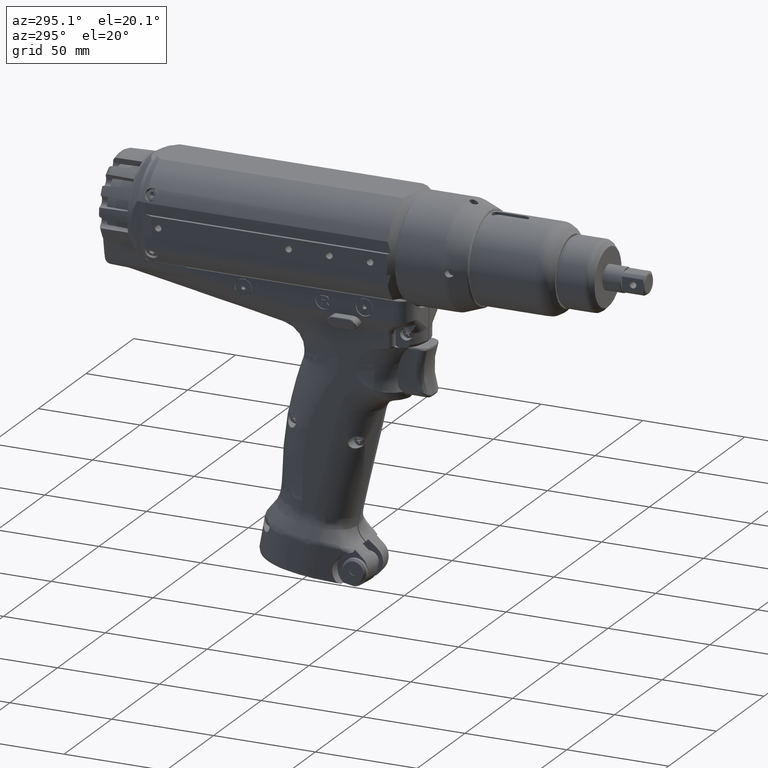
[diagram: clean part render]
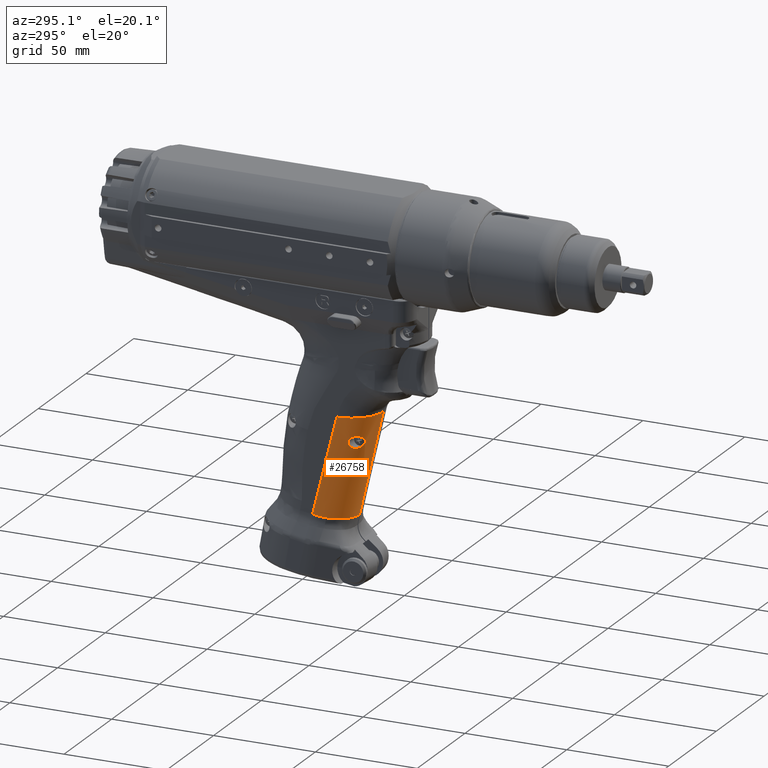
[diagram: same view with one face highlighted and labeled with its STEP entity id]
A machine part, auxiliary view. The second image highlights one B-rep face of the part: STEP entity #26758.
In plain terms, the highlighted face is a freeform B-spline surface patch.
Its self-contained STEP definition (entity closure, byte-faithful):
#284=FACE_BOUND('',#4470,.T.);
#2336=B_SPLINE_SURFACE_WITH_KNOTS('',3,3,((#58247,#58248,#58249,#58250,
#58251,#58252,#58253,#58254,#58255,#58256),(#58257,#58258,#58259,#58260,
#58261,#58262,#58263,#58264,#58265,#58266),(#58267,#58268,#58269,#58270,
#58271,#58272,#58273,#58274,#58275,#58276),(#58277,#58278,#58279,#58280,
#58281,#58282,#58283,#58284,#58285,#58286)),.UNSPECIFIED.,.F.,.F.,.F.,(4,
4),(4,1,1,1,1,1,1,4),(6.18932721387536,59.3048513845876),(0.,1.,2.,3.,4.,
5.,6.,6.98580711153998),.UNSPECIFIED.);
#2967=FACE_OUTER_BOUND('',#4469,.T.);
#4469=EDGE_LOOP('',(#19173,#19174,#19175,#19176,#19177));
#4470=EDGE_LOOP('',(#19178,#19179));
#5748=B_SPLINE_CURVE_WITH_KNOTS('',3,(#36787,#36788,#36789,#36790,#36791,
#36792,#36793,#36794,#36795,#36796,#36797,#36798,#36799,#36800,#36801,#36802,
#36803,#36804,#36805,#36806,#36807,#36808,#36809,#36810),.UNSPECIFIED.,
 .F.,.F.,(4,2,2,2,2,2,2,2,2,2,2,4),(1.00000004799961E-6,0.0399279498760376,
0.0798051705451103,0.130848526468876,0.198391212339318,0.315031575866223,
0.447056956273932,0.594813503529331,0.79240549529102,1.01294523933668,1.10984453991152,
1.17048799241797),.UNSPECIFIED.);
#5749=B_SPLINE_CURVE_WITH_KNOTS('',3,(#36813,#36814,#36815,#36816,#36817,
#36818,#36819,#36820,#36821,#36822,#36823,#36824,#36825,#36826,#36827,#36828,
#36829,#36830,#36831,#36832,#36833,#36834,#36835,#36836,#36837,#36838),
 .UNSPECIFIED.,.F.,.F.,(4,2,2,2,2,2,2,2,2,2,2,2,4),(1.0000001424218E-6,
0.035569275896258,0.0666455414046464,0.0955975118845171,0.134365885471637,
0.219622576986934,0.358342754203462,0.454641267355264,0.640740076406032,
0.764676928355262,0.869451308148143,0.951087910112421,1.00885718042926),
 .UNSPECIFIED.);
#6212=B_SPLINE_CURVE_WITH_KNOTS('',3,(#56357,#56358,#56359,#56360,#56361,
#56362,#56363,#56364,#56365,#56366,#56367,#56368,#56369,#56370,#56371,#56372,
#56373,#56374,#56375,#56376,#56377,#56378,#56379,#56380,#56381,#56382,#56383,
#56384),.UNSPECIFIED.,.F.,.F.,(4,3,3,3,3,3,3,3,3,4),(-6.48301901123684,
-5.58123336484104,-4.87644620304718,-3.99825809103723,-3.26299748077006,
-2.99430752214181,-2.13534146509987,-1.27134990228041,-0.404758120987186,
-4.51967170065159E-10),.UNSPECIFIED.);
#6252=B_SPLINE_CURVE_WITH_KNOTS('',3,(#58288,#58289,#58290,#58291,#58292,
#58293,#58294,#58295,#58296,#58297,#58298,#58299,#58300,#58301,#58302,#58303,
#58304,#58305,#58306,#58307,#58308,#58309,#58310,#58311,#58312,#58313,#58314,
#58315),.UNSPECIFIED.,.F.,.F.,(4,3,3,3,3,3,3,3,3,4),(0.,3.03318487153724,
6.06636974307834,9.09955461461943,12.1327394861605,15.1659243577017,18.1991092292427,
19.7157016650132,21.2322941007838,23.9684616308028),.UNSPECIFIED.);
#6253=B_SPLINE_CURVE_WITH_KNOTS('',3,(#58317,#58318,#58319,#58320,#58321,
#58322,#58323,#58324,#58325,#58326,#58327,#58328,#58329,#58330,#58331,#58332,
#58333,#58334,#58335,#58336,#58337,#58338,#58339,#58340,#58341,#58342,#58343,
#58344,#58345,#58346,#58347,#58348,#58349,#58350,#58351,#58352,#58353,#58354,
#58355,#58356,#58357,#58358,#58359,#58360,#58361,#58362,#58363,#58364,#58365,
#58366,#58367,#58368,#58369,#58370,#58371,#58372,#58373,#58374),
 .UNSPECIFIED.,.F.,.F.,(4,3,3,3,3,3,3,3,3,3,3,3,3,3,3,3,3,3,3,4),(0.310536268353028,
1.38071660850015,2.42671165334602,3.72830088089683,4.85342330669205,6.06677913336506,
7.28013496003807,7.444861780905,8.99504409606299,9.7068466133841,11.1601161307959,
12.1335582667301,13.3469140934031,14.4078794233717,14.5602699200761,14.885257713518,
16.0792595320456,16.9869815734222,18.6053668646146,19.4136932267682),
 .UNSPECIFIED.);
#6254=B_SPLINE_CURVE_WITH_KNOTS('',3,(#58375,#58376,#58377,#58378,#58379,
#58380,#58381),.UNSPECIFIED.,.F.,.F.,(4,3,4),(-51.8323816279364,-8.30137088875114,
-0.015886336177479),.UNSPECIFIED.);
#7363=LINE('',#54623,#8916);
#8916=VECTOR('',#31836,10.);
#10017=VERTEX_POINT('',#36785);
#10018=VERTEX_POINT('',#36786);
#10861=VERTEX_POINT('',#54605);
#10862=VERTEX_POINT('',#54622);
#10994=VERTEX_POINT('',#56356);
#11039=VERTEX_POINT('',#58287);
#11040=VERTEX_POINT('',#58316);
#12630=EDGE_CURVE('',#10017,#10018,#5748,.T.);
#12633=EDGE_CURVE('',#10018,#10017,#5749,.T.);
#13853=EDGE_CURVE('',#10862,#10861,#7363,.T.);
#14028=EDGE_CURVE('',#10861,#10994,#6212,.T.);
#14107=EDGE_CURVE('',#10862,#11039,#6252,.T.);
#14108=EDGE_CURVE('',#11040,#10994,#6253,.T.);
#14109=EDGE_CURVE('',#11039,#11040,#6254,.T.);
#19173=ORIENTED_EDGE('',*,*,#14107,.F.);
#19174=ORIENTED_EDGE('',*,*,#13853,.T.);
#19175=ORIENTED_EDGE('',*,*,#14028,.T.);
#19176=ORIENTED_EDGE('',*,*,#14108,.F.);
#19177=ORIENTED_EDGE('',*,*,#14109,.F.);
#19178=ORIENTED_EDGE('',*,*,#12630,.T.);
#19179=ORIENTED_EDGE('',*,*,#12633,.T.);
#26758=ADVANCED_FACE('',(#2967,#284),#2336,.T.);
#31836=DIRECTION('',(-0.0105560679108805,0.238202072095039,-0.97115824780511));
#36785=CARTESIAN_POINT('',(-13.7149488905319,121.236096107619,-92.8080134733453));
#36786=CARTESIAN_POINT('',(-8.11928175796273,115.23609610762,-92.808013510919));
#36787=CARTESIAN_POINT('Ctrl Pts',(-13.7149488905348,121.23609610762,-92.8080134733457));
#36788=CARTESIAN_POINT('Ctrl Pts',(-13.7303484846312,121.23609610762,-92.6758173220096));
#36789=CARTESIAN_POINT('Ctrl Pts',(-13.7410168009004,121.22735490325,-92.5433488724138));
#36790=CARTESIAN_POINT('Ctrl Pts',(-13.752893597484,121.192237126642,-92.2799388535383));
#36791=CARTESIAN_POINT('Ctrl Pts',(-13.7540895795908,121.165952611107,-92.1495333491206));
#36792=CARTESIAN_POINT('Ctrl Pts',(-13.7460482663151,121.086508218777,-91.8571834851486));
#36793=CARTESIAN_POINT('Ctrl Pts',(-13.7338304543853,121.028139727693,-91.6975862814125));
#36794=CARTESIAN_POINT('Ctrl Pts',(-13.6876761893043,120.862767318435,-91.3415213282004));
#36795=CARTESIAN_POINT('Ctrl Pts',(-13.6482766619949,120.747089860536,-91.1518428767951));
#36796=CARTESIAN_POINT('Ctrl Pts',(-13.5056872432468,120.382734054409,-90.678444331958));
#36797=CARTESIAN_POINT('Ctrl Pts',(-13.3793797062975,120.10475457531,-90.4342783070648));
#36798=CARTESIAN_POINT('Ctrl Pts',(-13.0386234738941,119.457882261959,-90.0386607603775));
#36799=CARTESIAN_POINT('Ctrl Pts',(-12.8201043989713,119.092844081317,-89.9096863350362));
#36800=CARTESIAN_POINT('Ctrl Pts',(-12.2927111841346,118.326846459901,-89.7814647588892));
#36801=CARTESIAN_POINT('Ctrl Pts',(-11.981012492416,117.934278397285,-89.8002583252074));
#36802=CARTESIAN_POINT('Ctrl Pts',(-11.2073479538923,117.088497796319,-89.992122340382));
#36803=CARTESIAN_POINT('Ctrl Pts',(-10.7267435973319,116.656199435615,-90.215738808811));
#36804=CARTESIAN_POINT('Ctrl Pts',(-9.72047229838446,115.904705477581,-90.8500414974354));
#36805=CARTESIAN_POINT('Ctrl Pts',(-9.21422559197368,115.617830120473,-91.2681693145991));
#36806=CARTESIAN_POINT('Ctrl Pts',(-8.64506858879084,115.367386923819,-91.9056715101126));
#36807=CARTESIAN_POINT('Ctrl Pts',(-8.47888927010482,115.306574435243,-92.1206214031535));
#36808=CARTESIAN_POINT('Ctrl Pts',(-8.25469353282348,115.248771192539,-92.4961203286857));
#36809=CARTESIAN_POINT('Ctrl Pts',(-8.17840295862716,115.236096105627,-92.6488512910006));
#36810=CARTESIAN_POINT('Ctrl Pts',(-8.11928175796273,115.23609610762,-92.8080135109189));
#36813=CARTESIAN_POINT('Ctrl Pts',(-8.11928175796271,115.23609610762,-92.808013510919));
#36814=CARTESIAN_POINT('Ctrl Pts',(-8.07799803229494,115.236096109012,-92.9191548502344));
#36815=CARTESIAN_POINT('Ctrl Pts',(-8.04530422763644,115.242266748326,-93.0328692241218));
#36816=CARTESIAN_POINT('Ctrl Pts',(-8.0041377223712,115.267052324079,-93.2497613460381));
#36817=CARTESIAN_POINT('Ctrl Pts',(-7.99340267191995,115.283830688683,-93.3510208271908));
#36818=CARTESIAN_POINT('Ctrl Pts',(-7.99022889551102,115.326790841027,-93.546426904475));
#36819=CARTESIAN_POINT('Ctrl Pts',(-7.99661459683518,115.351909249477,-93.6390276553563));
#36820=CARTESIAN_POINT('Ctrl Pts',(-8.02931271410454,115.420545812113,-93.8515778133415));
#36821=CARTESIAN_POINT('Ctrl Pts',(-8.06127615892652,115.466634670073,-93.9677387196367));
#36822=CARTESIAN_POINT('Ctrl Pts',(-8.19777649715029,115.631863189238,-94.321264864511));
#36823=CARTESIAN_POINT('Ctrl Pts',(-8.34182664302372,115.770764687692,-94.533317506437));
#36824=CARTESIAN_POINT('Ctrl Pts',(-8.76843782077947,116.160463311334,-95.0071315054416));
#36825=CARTESIAN_POINT('Ctrl Pts',(-9.11669662551029,116.458895946667,-95.255955598459));
#36826=CARTESIAN_POINT('Ctrl Pts',(-9.76611673821292,117.036628617064,-95.570978942033));
#36827=CARTESIAN_POINT('Ctrl Pts',(-10.0417211083542,117.287374507143,-95.6663319801986));
#36828=CARTESIAN_POINT('Ctrl Pts',(-10.8405376371259,118.042684172567,-95.8451552900382));
#36829=CARTESIAN_POINT('Ctrl Pts',(-11.3717920673839,118.584263814852,-95.839029495119));
#36830=CARTESIAN_POINT('Ctrl Pts',(-12.1697936378831,119.468661602121,-95.5679972259104));
#36831=CARTESIAN_POINT('Ctrl Pts',(-12.4667509271316,119.81812549594,-95.3897666023795));
#36832=CARTESIAN_POINT('Ctrl Pts',(-12.949833065991,120.404035141857,-94.9104635164193));
#36833=CARTESIAN_POINT('Ctrl Pts',(-13.1423116497635,120.644673220338,-94.6361392804798));
#36834=CARTESIAN_POINT('Ctrl Pts',(-13.4229855088343,120.981484322016,-94.0529365155557));
#36835=CARTESIAN_POINT('Ctrl Pts',(-13.5223171144872,121.094448011332,-93.7703511925302));
#36836=CARTESIAN_POINT('Ctrl Pts',(-13.6493858629238,121.210951309054,-93.2534837951397));
#36837=CARTESIAN_POINT('Ctrl Pts',(-13.6888320606588,121.23609610762,-93.0322105770559));
#36838=CARTESIAN_POINT('Ctrl Pts',(-13.7149488905348,121.23609610762,-92.8080134733457));
#54605=CARTESIAN_POINT('',(-15.9825582871797,137.56783920862,-128.395362420582));
#54622=CARTESIAN_POINT('',(-15.4639503978986,125.865236035306,-80.6834366065202));
#54623=CARTESIAN_POINT('',(-15.4639503978986,125.865236035306,-80.6834366065202));
#56356=CARTESIAN_POINT('',(-14.7580043876315,131.420744754359,-129.479388351191));
#56357=CARTESIAN_POINT('Ctrl Pts',(-15.9825582871754,137.56783920862,-128.395362420582));
#56358=CARTESIAN_POINT('Ctrl Pts',(-15.9831533244238,137.272738634841,-128.447396613685));
#56359=CARTESIAN_POINT('Ctrl Pts',(-15.9757718524603,136.977551142394,-128.499448640411));
#56360=CARTESIAN_POINT('Ctrl Pts',(-15.9604043253489,136.682934606709,-128.551401792755));
#56361=CARTESIAN_POINT('Ctrl Pts',(-15.948393892648,136.452678167352,-128.592005582506));
#56362=CARTESIAN_POINT('Ctrl Pts',(-15.9315064834845,136.222770572809,-128.632548960916));
#56363=CARTESIAN_POINT('Ctrl Pts',(-15.9097596218976,135.99352375774,-128.672976584781));
#56364=CARTESIAN_POINT('Ctrl Pts',(-15.8826623131577,135.707874644613,-128.723350741121));
#56365=CARTESIAN_POINT('Ctrl Pts',(-15.8479757918881,135.423251479451,-128.773545173181));
#56366=CARTESIAN_POINT('Ctrl Pts',(-15.8056904992428,135.140293366244,-128.823446531886));
#56367=CARTESIAN_POINT('Ctrl Pts',(-15.7702872528876,134.903387454912,-128.865226308852));
#56368=CARTESIAN_POINT('Ctrl Pts',(-15.7295582188913,134.667648662582,-128.90680065576));
#56369=CARTESIAN_POINT('Ctrl Pts',(-15.6835244767373,134.43344322011,-128.948104616162));
#56370=CARTESIAN_POINT('Ctrl Pts',(-15.6667021363288,134.347856355032,-128.963198528792));
#56371=CARTESIAN_POINT('Ctrl Pts',(-15.649153103709,134.262486985927,-128.978254088898));
#56372=CARTESIAN_POINT('Ctrl Pts',(-15.6308843634851,134.177343986306,-128.993269713835));
#56373=CARTESIAN_POINT('Ctrl Pts',(-15.5724816310667,133.905153142098,-129.041272669405));
#56374=CARTESIAN_POINT('Ctrl Pts',(-15.5067246277895,133.635261039781,-129.088870088571));
#56375=CARTESIAN_POINT('Ctrl Pts',(-15.4337775516139,133.367810124714,-129.136036281032));
#56376=CARTESIAN_POINT('Ctrl Pts',(-15.3604036879654,133.098794449192,-129.183478426158));
#56377=CARTESIAN_POINT('Ctrl Pts',(-15.2797552591678,132.832248169038,-129.230484362234));
#56378=CARTESIAN_POINT('Ctrl Pts',(-15.1919466009784,132.568320582224,-129.277027188704));
#56379=CARTESIAN_POINT('Ctrl Pts',(-15.1038736789871,132.303598694382,-129.323710087742));
#56380=CARTESIAN_POINT('Ctrl Pts',(-15.0085972393123,132.041510839199,-129.369927164887));
#56381=CARTESIAN_POINT('Ctrl Pts',(-14.9061815623112,131.782218695684,-129.415649329466));
#56382=CARTESIAN_POINT('Ctrl Pts',(-14.8583463787436,131.661111384324,-129.437004733246));
#56383=CARTESIAN_POINT('Ctrl Pts',(-14.8089530330164,131.540614165078,-129.458252135147));
#56384=CARTESIAN_POINT('Ctrl Pts',(-14.7580043876315,131.420744754359,-129.479388351191));
#58247=CARTESIAN_POINT('Ctrl Pts',(-15.4314594744031,125.132064804676,-77.6942716449659));
#58248=CARTESIAN_POINT('Ctrl Pts',(-15.4335618424986,123.998118751066,-77.8876895097429));
#58249=CARTESIAN_POINT('Ctrl Pts',(-15.1679206120775,121.711344763132,-78.2760355364731));
#58250=CARTESIAN_POINT('Ctrl Pts',(-14.029755443431,118.520342021107,-78.8135498505981));
#58251=CARTESIAN_POINT('Ctrl Pts',(-12.1715831929769,115.605345644876,-79.2996621686179));
#58252=CARTESIAN_POINT('Ctrl Pts',(-9.6701386326629,113.166211357494,-79.7007310331851));
#58253=CARTESIAN_POINT('Ctrl Pts',(-6.72762038054001,111.376932785563,-79.9885858677897));
#58254=CARTESIAN_POINT('Ctrl Pts',(-3.47426618106442,110.27236401148,-80.1578291050846));
#58255=CARTESIAN_POINT('Ctrl Pts',(-1.18087065463025,110.045844881584,-80.1829956593184));
#58256=CARTESIAN_POINT('Ctrl Pts',(-0.0488880611180695,110.042860328666,
-80.1768412995924));
#58257=CARTESIAN_POINT('Ctrl Pts',(-15.6210933346683,129.411231899446,-95.1405867893517));
#58258=CARTESIAN_POINT('Ctrl Pts',(-15.6230302236227,128.256820541903,-95.3187805731612));
#58259=CARTESIAN_POINT('Ctrl Pts',(-15.3627156754222,125.927485011108,-95.6716050561711));
#58260=CARTESIAN_POINT('Ctrl Pts',(-14.2152537135969,122.671714144477,-96.1481023922254));
#58261=CARTESIAN_POINT('Ctrl Pts',(-12.3369560272963,119.695376717008,-96.5650954123861));
#58262=CARTESIAN_POINT('Ctrl Pts',(-9.80693994292037,117.200933998075,-96.8930978410068));
#58263=CARTESIAN_POINT('Ctrl Pts',(-6.82478284514953,115.3626824394,-97.1106655846896));
#58264=CARTESIAN_POINT('Ctrl Pts',(-3.52527511419358,114.220563722921,-97.2139046381929));
#58265=CARTESIAN_POINT('Ctrl Pts',(-1.19849470927908,113.976534673984,-97.2002597254742));
#58266=CARTESIAN_POINT('Ctrl Pts',(-0.0496179472514727,113.967568340899,
-97.1762767400402));
#58267=CARTESIAN_POINT('Ctrl Pts',(-15.810728719596,133.690433398846,-112.587042202651));
#58268=CARTESIAN_POINT('Ctrl Pts',(-15.8125015680735,132.51426407817,-112.750144262582));
#58269=CARTESIAN_POINT('Ctrl Pts',(-15.5557196069808,130.141487800439,-113.067561297035));
#58270=CARTESIAN_POINT('Ctrl Pts',(-14.3941509683275,126.813887276114,-113.483472554798));
#58271=CARTESIAN_POINT('Ctrl Pts',(-12.4940308752062,123.780760031122,-113.830833089404));
#58272=CARTESIAN_POINT('Ctrl Pts',(-9.94515068078362,121.241044008173,-114.085537223462));
#58273=CARTESIAN_POINT('Ctrl Pts',(-6.92139778519268,119.350126450286,-114.232966606506));
#58274=CARTESIAN_POINT('Ctrl Pts',(-3.57393511619915,118.170974381231,-114.269898699496));
#58275=CARTESIAN_POINT('Ctrl Pts',(-1.21573223136293,117.905714399212,-114.21784394547));
#58276=CARTESIAN_POINT('Ctrl Pts',(-0.0503321931973477,117.892242084345,
-114.17585667221));
#58277=CARTESIAN_POINT('Ctrl Pts',(-16.0003637013333,137.96962580009,-130.033460522445));
#58278=CARTESIAN_POINT('Ctrl Pts',(-16.0019712146193,136.77134572308,-130.181351744753));
#58279=CARTESIAN_POINT('Ctrl Pts',(-15.7502254994939,134.35449017358,-130.463600680171));
#58280=CARTESIAN_POINT('Ctrl Pts',(-14.5760126653358,130.95500817772,-130.818662812572));
#58281=CARTESIAN_POINT('Ctrl Pts',(-12.6546750740442,127.86414133154,-131.096649539636));
#58282=CARTESIAN_POINT('Ctrl Pts',(-10.0856986916264,125.27811688381,-131.278740149826));
#58283=CARTESIAN_POINT('Ctrl Pts',(-7.02017381899619,123.33534941197,-131.35572721669));
#58284=CARTESIAN_POINT('Ctrl Pts',(-3.62412924460832,122.11988967934,-131.326162407777));
#58285=CARTESIAN_POINT('Ctrl Pts',(-1.23349146669455,121.834611585091,-131.235407693927));
#58286=CARTESIAN_POINT('Ctrl Pts',(-0.0510680379426442,121.816896334771,
-131.17540103411));
#58287=CARTESIAN_POINT('',(-0.299999863799771,110.162062166148,-80.683427233193));
#58288=CARTESIAN_POINT('Ctrl Pts',(-15.4639503978986,125.865236035306,-80.6834366065202));
#58289=CARTESIAN_POINT('Ctrl Pts',(-15.4637990302654,124.843856267925,-80.6834353188214));
#58290=CARTESIAN_POINT('Ctrl Pts',(-15.3647043294118,123.822679514664,-80.6834342097095));
#58291=CARTESIAN_POINT('Ctrl Pts',(-15.1719144153389,122.819684507615,-80.683433273566));
#58292=CARTESIAN_POINT('Ctrl Pts',(-14.9791245012657,121.816689500566,-80.6834323374225));
#58293=CARTESIAN_POINT('Ctrl Pts',(-14.690531631593,120.832011125928,-80.6834315743089));
#58294=CARTESIAN_POINT('Ctrl Pts',(-14.3093168083194,119.884395071811,-80.6834309623943));
#58295=CARTESIAN_POINT('Ctrl Pts',(-13.9281019850459,118.936779017694,-80.6834303504798));
#58296=CARTESIAN_POINT('Ctrl Pts',(-13.4555862981246,118.026073364457,-80.6834298894779));
#58297=CARTESIAN_POINT('Ctrl Pts',(-12.9005609562946,117.168634032385,-80.6834295454021));
#58298=CARTESIAN_POINT('Ctrl Pts',(-12.3455356144646,116.311194700314,-80.6834292013262));
#58299=CARTESIAN_POINT('Ctrl Pts',(-11.7059169683531,115.508539854216,-80.6834289730014));
#58300=CARTESIAN_POINT('Ctrl Pts',(-10.9940374421776,114.776180889966,-80.6834288171056));
#58301=CARTESIAN_POINT('Ctrl Pts',(-10.2821579160021,114.043821925716,-80.68342866121));
#58302=CARTESIAN_POINT('Ctrl Pts',(-9.4983570841888,113.381031332362,-80.6834285778858));
#58303=CARTESIAN_POINT('Ctrl Pts',(-8.65566306089226,112.803889056575,-80.6834285159777));
#58304=CARTESIAN_POINT('Ctrl Pts',(-7.81296903759575,112.226746780787,-80.6834284540696));
#58305=CARTESIAN_POINT('Ctrl Pts',(-6.91219749832367,111.73434923095,-80.6834284140328));
#58306=CARTESIAN_POINT('Ctrl Pts',(-5.97137757708338,111.336897932129,-80.6834283441009));
#58307=CARTESIAN_POINT('Ctrl Pts',(-5.50096761646321,111.138172282718,-80.6834283091349));
#58308=CARTESIAN_POINT('Ctrl Pts',(-5.02033149965612,110.963293115415,-80.6834282664037));
#58309=CARTESIAN_POINT('Ctrl Pts',(-4.53205492885411,110.813840645515,-80.6834282088532));
#58310=CARTESIAN_POINT('Ctrl Pts',(-4.0437783580521,110.664388175614,-80.6834281513026));
#58311=CARTESIAN_POINT('Ctrl Pts',(-3.54757306129995,110.540558421592,-80.6834280784317));
#58312=CARTESIAN_POINT('Ctrl Pts',(-3.04619780736619,110.443339700917,-80.6834279835116));
#58313=CARTESIAN_POINT('Ctrl Pts',(-2.14163923394068,110.267942078887,-80.683427812261));
#58314=CARTESIAN_POINT('Ctrl Pts',(-1.22119265686621,110.177138729034,-80.6834275709668));
#58315=CARTESIAN_POINT('Ctrl Pts',(-0.299999863799771,110.162062166148,
-80.683427233193));
#58316=CARTESIAN_POINT('',(-0.299999985151615,121.818883349219,-131.172330619457));
#58317=CARTESIAN_POINT('Ctrl Pts',(-0.2999999917739,121.818882989238,-131.172330702572));
#58318=CARTESIAN_POINT('Ctrl Pts',(-0.64459632364452,121.82497471973,-131.171258616553));
#58319=CARTESIAN_POINT('Ctrl Pts',(-0.989034531566835,121.841475034259,
-131.168352696702));
#58320=CARTESIAN_POINT('Ctrl Pts',(-1.33261021674732,121.868488149677,-131.163591680373));
#58321=CARTESIAN_POINT('Ctrl Pts',(-1.6684213419815,121.894890788385,-131.158938259541));
#58322=CARTESIAN_POINT('Ctrl Pts',(-2.00340915658447,121.93133651829,-131.152512666596));
#58323=CARTESIAN_POINT('Ctrl Pts',(-2.33691502452764,121.977970411926,-131.144289211382));
#58324=CARTESIAN_POINT('Ctrl Pts',(-2.75191473908534,122.035999533474,-131.13405631327));
#58325=CARTESIAN_POINT('Ctrl Pts',(-3.16480146780638,122.109835808919,-131.121037408829));
#58326=CARTESIAN_POINT('Ctrl Pts',(-3.57392205780248,122.199799718354,-131.105178113025));
#58327=CARTESIAN_POINT('Ctrl Pts',(-3.92757491610507,122.277566505199,-131.091468988065));
#58328=CARTESIAN_POINT('Ctrl Pts',(-4.27841299558025,122.367384971591,-131.075637331865));
#58329=CARTESIAN_POINT('Ctrl Pts',(-4.62575213764641,122.468974965843,-131.057728733052));
#58330=CARTESIAN_POINT('Ctrl Pts',(-5.00033001663564,122.578531764847,-131.038415721224));
#58331=CARTESIAN_POINT('Ctrl Pts',(-5.37079975458998,122.701769972406,-131.016686327428));
#58332=CARTESIAN_POINT('Ctrl Pts',(-5.73618622289253,122.838277316766,-130.992619998863));
#58333=CARTESIAN_POINT('Ctrl Pts',(-6.10157269119509,122.974784661125,-130.968553670299));
#58334=CARTESIAN_POINT('Ctrl Pts',(-6.46178025860443,123.12452057389,-130.942153605027));
#58335=CARTESIAN_POINT('Ctrl Pts',(-6.81598620341464,123.287088902505,-130.913491063415));
#58336=CARTESIAN_POINT('Ctrl Pts',(-6.86407367943619,123.309159397704,-130.90959979817));
#58337=CARTESIAN_POINT('Ctrl Pts',(-6.9120492149313,123.331465814675,-130.905666935369));
#58338=CARTESIAN_POINT('Ctrl Pts',(-6.95991053923743,123.354007024751,-130.901692679345));
#58339=CARTESIAN_POINT('Ctrl Pts',(-7.41031550746867,123.566133896611,-130.864292446814));
#58340=CARTESIAN_POINT('Ctrl Pts',(-7.85060325869237,123.799057193206,-130.823225742153));
#58341=CARTESIAN_POINT('Ctrl Pts',(-8.27885186976943,124.051776012244,-130.778667928761));
#58342=CARTESIAN_POINT('Ctrl Pts',(-8.47549224969329,124.167817777014,-130.75820816514));
#58343=CARTESIAN_POINT('Ctrl Pts',(-8.66959475270869,124.288032701188,-130.737012452312));
#58344=CARTESIAN_POINT('Ctrl Pts',(-8.86097593250456,124.412321332565,-130.715098362185));
#58345=CARTESIAN_POINT('Ctrl Pts',(-9.25171413310881,124.666078343738,-130.670356908751));
#58346=CARTESIAN_POINT('Ctrl Pts',(-9.63103033951643,124.936765270163,-130.622625767028));
#58347=CARTESIAN_POINT('Ctrl Pts',(-9.99745324099306,125.223546118196,-130.572062747014));
#58348=CARTESIAN_POINT('Ctrl Pts',(-10.2428939439013,125.415640260342,-130.538194167504));
#58349=CARTESIAN_POINT('Ctrl Pts',(-10.4825504395625,125.614955263095,-130.503055071156));
#58350=CARTESIAN_POINT('Ctrl Pts',(-10.7159783386106,125.821054938726,-130.466716966514));
#58351=CARTESIAN_POINT('Ctrl Pts',(-11.0069366718928,126.077949758737,-130.421423004633));
#58352=CARTESIAN_POINT('Ctrl Pts',(-11.2882482390305,126.345406668988,-130.374267141977));
#58353=CARTESIAN_POINT('Ctrl Pts',(-11.5591963326802,126.622753133103,-130.325364642937));
#58354=CARTESIAN_POINT('Ctrl Pts',(-11.7961149078121,126.865266480257,-130.282604015849));
#58355=CARTESIAN_POINT('Ctrl Pts',(-12.0250298380435,127.115259526345,-130.238527403974));
#58356=CARTESIAN_POINT('Ctrl Pts',(-12.2454963773758,127.372348988552,-130.193197742715));
#58357=CARTESIAN_POINT('Ctrl Pts',(-12.2771628272461,127.40927572851,-130.186686870588));
#58358=CARTESIAN_POINT('Ctrl Pts',(-12.3086549143791,127.446348928511,-130.180150137501));
#58359=CARTESIAN_POINT('Ctrl Pts',(-12.3399712519328,127.483567507737,-130.173587720287));
#58360=CARTESIAN_POINT('Ctrl Pts',(-12.4067564364445,127.562939805874,-130.15959271708));
#58361=CARTESIAN_POINT('Ctrl Pts',(-12.4727356757247,127.642965429445,-130.145482569997));
#58362=CARTESIAN_POINT('Ctrl Pts',(-12.5378944970792,127.723632152342,-130.131259460197));
#58363=CARTESIAN_POINT('Ctrl Pts',(-12.777287338165,128.020000864575,-130.079003900729));
#58364=CARTESIAN_POINT('Ctrl Pts',(-13.0056093960712,128.325021115632,-130.025223930159));
#58365=CARTESIAN_POINT('Ctrl Pts',(-13.2224078140093,128.637792905832,-129.970077074912));
#58366=CARTESIAN_POINT('Ctrl Pts',(-13.3872255717751,128.875572985795,-129.928152502232));
#58367=CARTESIAN_POINT('Ctrl Pts',(-13.5453823485591,129.117833855491,-129.885437812044));
#58368=CARTESIAN_POINT('Ctrl Pts',(-13.6966611061698,129.364188860483,-129.842000486463));
#58369=CARTESIAN_POINT('Ctrl Pts',(-13.9663772803146,129.803417278785,-129.764555711956));
#58370=CARTESIAN_POINT('Ctrl Pts',(-14.2143371315719,130.255845169154,-129.684798792002));
#58371=CARTESIAN_POINT('Ctrl Pts',(-14.4389772243656,130.718952907903,-129.603138646201));
#58372=CARTESIAN_POINT('Ctrl Pts',(-14.5511770262236,130.950258886637,-129.562352284048));
#58373=CARTESIAN_POINT('Ctrl Pts',(-14.6575586402633,131.184228205071,-129.521091252728));
#58374=CARTESIAN_POINT('Ctrl Pts',(-14.7580103160241,131.420742326858,-129.479388870152));
#58375=CARTESIAN_POINT('Ctrl Pts',(-0.299999431621508,110.162047463739,
-80.6834306253788));
#58376=CARTESIAN_POINT('Ctrl Pts',(-0.299999960923694,113.426519635057,
-94.8217876794846));
#58377=CARTESIAN_POINT('Ctrl Pts',(-0.299998609220141,116.690846887735,
-108.96060671427));
#58378=CARTESIAN_POINT('Ctrl Pts',(-0.299999639134643,119.955031128855,
-123.099166447838));
#58379=CARTESIAN_POINT('Ctrl Pts',(-0.299999835163648,120.576320358012,
-125.79023234038));
#58380=CARTESIAN_POINT('Ctrl Pts',(-0.29999999669752,121.197604338096,-128.481288778408));
#58381=CARTESIAN_POINT('Ctrl Pts',(-0.299999984355512,121.818882989107,
-131.172330702595));